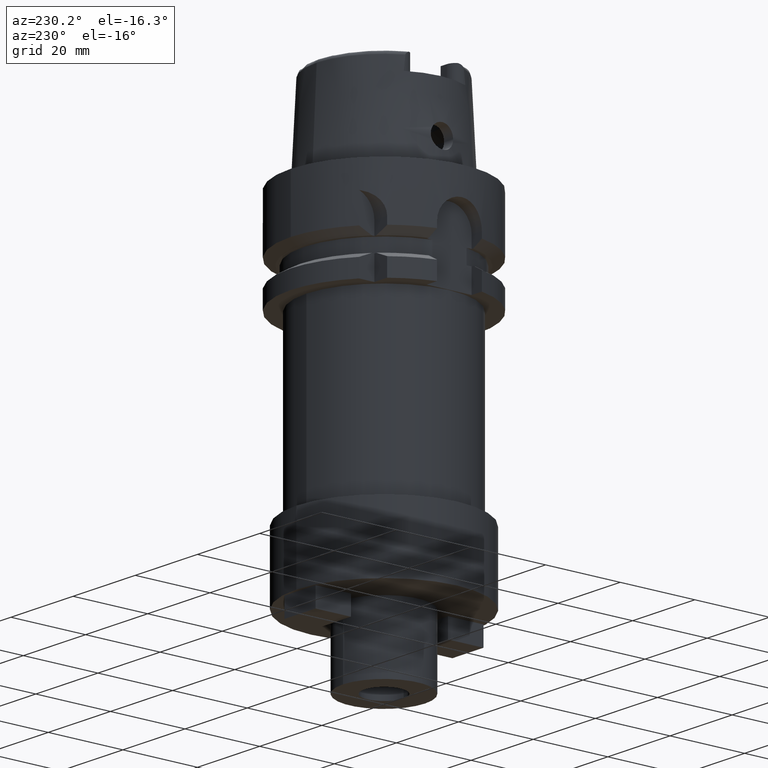
[diagram: clean part render]
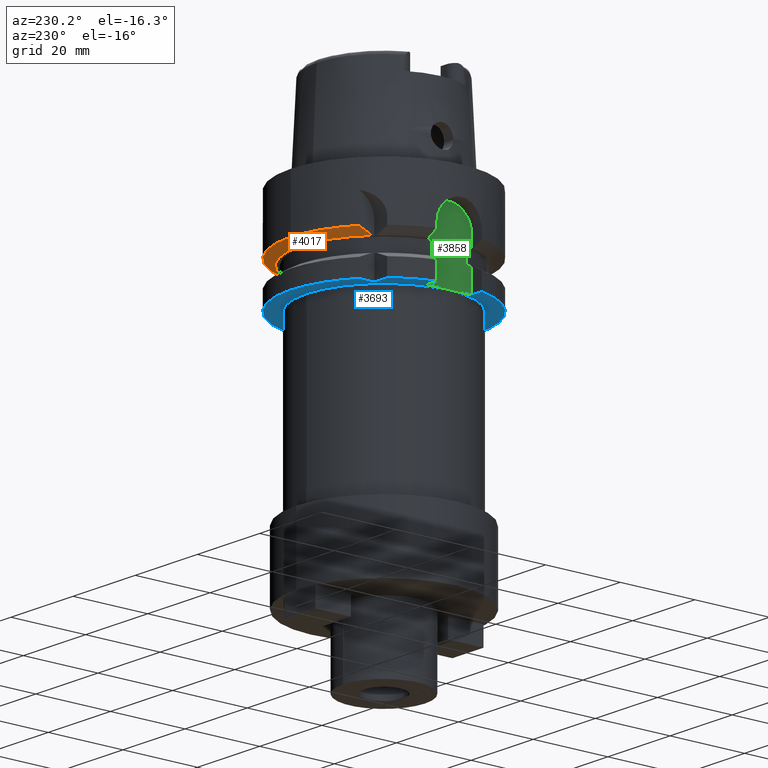
[diagram: same view with three faces highlighted in distinct colors, each labeled with its STEP entity id]
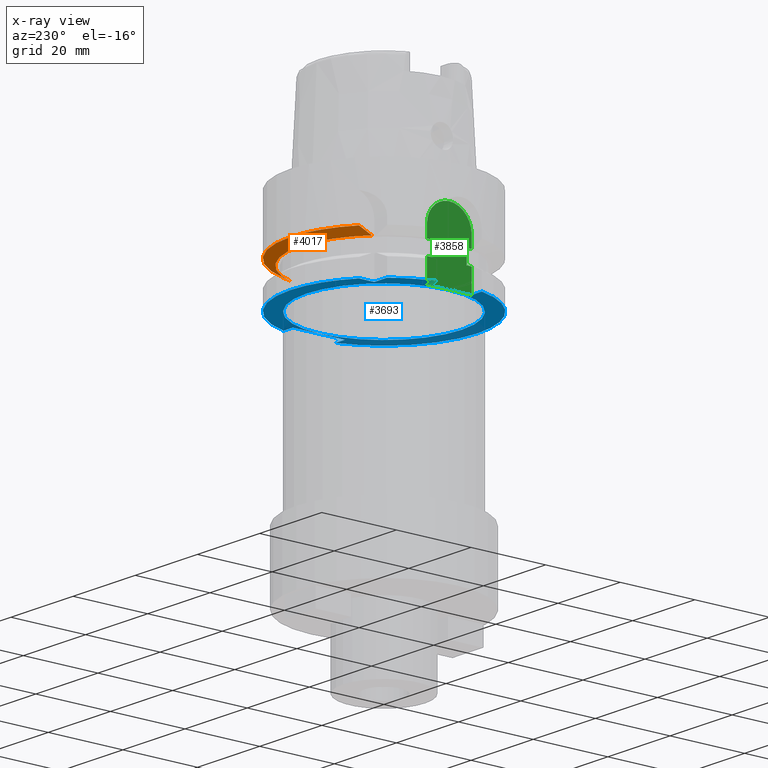
[diagram: x-ray of the same camera — body ghosted, the three highlighted faces saturated]
A machine part, auxiliary view with three faces highlighted in distinct colors.
The next image is the same camera in x-ray (body ghosted, the three faces saturated) — at least one of them is partly hidden behind the body in this view.
Their STEP definitions:

[orange] entity #4017 — the highlighted conical surface has half-angle 60 deg.
#1667=CARTESIAN_POINT('',(0.E0,0.E0,-1.6125E1));
#1668=DIRECTION('',(0.E0,0.E0,1.E0));
#1669=DIRECTION('',(9.499067212052E-1,3.125335518136E-1,0.E0));
#1670=AXIS2_PLACEMENT_3D('',#1667,#1668,#1669);
#1675=CARTESIAN_POINT('',(0.E0,0.E0,-1.6125E1));
#1676=DIRECTION('',(0.E0,0.E0,1.E0));
#1677=DIRECTION('',(0.E0,1.E0,0.E0));
#1678=AXIS2_PLACEMENT_3D('',#1675,#1676,#1677);
#1683=CARTESIAN_POINT('',(-1.549998696696E1,1.616805725645E1,-1.6125E1));
#1684=CARTESIAN_POINT('',(-1.549998696696E1,1.655361155509E1,
-1.596431356450E1));
#1685=CARTESIAN_POINT('',(-1.550000794499E1,1.732281351975E1,
-1.563762646188E1));
#1686=CARTESIAN_POINT('',(-1.549999174208E1,1.847204114163E1,
-1.513705480377E1));
#1687=CARTESIAN_POINT('',(-1.550001397181E1,1.923439116187E1,
-1.479487699931E1));
#1688=CARTESIAN_POINT('',(-1.550001397181E1,1.961503420525E1,
-1.462244977309E1));
#1701=CARTESIAN_POINT('',(2.127562136146E1,7.000000355892E0,-1.6125E1));
#1702=CARTESIAN_POINT('',(2.156931147606E1,7.000000355892E0,-1.596393185582E1));
#1703=CARTESIAN_POINT('',(2.216268158990E1,6.999999978779E0,-1.563786199306E1));
#1704=CARTESIAN_POINT('',(2.307079246205E1,6.999999540436E0,-1.513699763345E1));
#1705=CARTESIAN_POINT('',(2.368824366852E1,7.000001086463E0,-1.479528470329E1));
#1706=CARTESIAN_POINT('',(2.399999968312E1,7.000001086463E0,-1.462249198794E1));
#1711=CARTESIAN_POINT('',(0.E0,0.E0,-1.462250092524E1));
#1712=DIRECTION('',(0.E0,0.E0,1.E0));
#1713=DIRECTION('',(9.6E-1,2.8E-1,0.E0));
#1714=AXIS2_PLACEMENT_3D('',#1711,#1712,#1713);
#1719=CARTESIAN_POINT('',(0.E0,0.E0,-1.462250092524E1));
#1720=DIRECTION('',(0.E0,0.E0,1.E0));
#1721=DIRECTION('',(0.E0,1.E0,0.E0));
#1722=AXIS2_PLACEMENT_3D('',#1719,#1720,#1721);
#2640=CARTESIAN_POINT('',(-1.549998696696E1,1.616805725645E1,-1.6125E1));
#2642=VERTEX_POINT('',#2640);
#2644=VERTEX_POINT('',#1688);
#2748=CARTESIAN_POINT('',(2.127562136146E1,7.000000355892E0,-1.6125E1));
#2749=VERTEX_POINT('',#2748);
#2750=CARTESIAN_POINT('',(0.E0,2.239759526419E1,-1.6125E1));
#2751=VERTEX_POINT('',#2750);
#2754=VERTEX_POINT('',#1706);
#2755=CARTESIAN_POINT('',(0.E0,2.5E1,-1.462250092524E1));
#2756=VERTEX_POINT('',#2755);
#4001=CARTESIAN_POINT('',(0.E0,0.E0,-1.537375046262E1));
#4002=DIRECTION('',(0.E0,0.E0,1.E0));
#4003=DIRECTION('',(0.E0,1.E0,0.E0));
#4004=AXIS2_PLACEMENT_3D('',#4001,#4002,#4003);
#4005=CONICAL_SURFACE('',#4004,2.369879763210E1,6.E1);
#4006=ORIENTED_EDGE('',*,*,#3990,.F.);
#4007=ORIENTED_EDGE('',*,*,#3979,.F.);
#4008=ORIENTED_EDGE('',*,*,#3977,.F.);
#4010=ORIENTED_EDGE('',*,*,#4009,.T.);
#4012=ORIENTED_EDGE('',*,*,#4011,.T.);
#4014=ORIENTED_EDGE('',*,*,#4013,.T.);
#4015=EDGE_LOOP('',(#4006,#4007,#4008,#4010,#4012,#4014));
#4016=FACE_OUTER_BOUND('',#4015,.F.);
#1671=CIRCLE('',#1670,2.239759526419E1);
#1679=CIRCLE('',#1678,2.239759526419E1);
#1689=B_SPLINE_CURVE_WITH_KNOTS('',3,(#1683,#1684,#1685,#1686,#1687,#1688),
.UNSPECIFIED.,.F.,.F.,(4,1,1,4),(0.E0,3.333333333333E-1,6.666666666667E-1,1.E0),
.UNSPECIFIED.);
#1707=B_SPLINE_CURVE_WITH_KNOTS('',3,(#1701,#1702,#1703,#1704,#1705,#1706),
.UNSPECIFIED.,.F.,.F.,(4,1,1,4),(0.E0,3.333333333333E-1,6.666666666667E-1,1.E0),
.UNSPECIFIED.);
#1715=CIRCLE('',#1714,2.5E1);
#1723=CIRCLE('',#1722,2.5E1);
#3977=EDGE_CURVE('',#2749,#2751,#1671,.T.);
#3979=EDGE_CURVE('',#2751,#2642,#1679,.T.);
#3990=EDGE_CURVE('',#2642,#2644,#1689,.T.);
#4009=EDGE_CURVE('',#2749,#2754,#1707,.T.);
#4011=EDGE_CURVE('',#2754,#2756,#1715,.T.);
#4013=EDGE_CURVE('',#2756,#2644,#1723,.T.);
#4017=ADVANCED_FACE('',(#4016),#4005,.T.);

[blue] entity #3693 — the highlighted planar face has unit normal (0, 0, 1).
#1183=DIRECTION('',(1.195736170824E-13,-1.E0,0.E0));
#1184=VECTOR('',#1183,4.115045245932E0);
#1185=CARTESIAN_POINT('',(-1.55E1,1.961504524593E1,-2.6E1));
#1186=LINE('',#1185,#1184);
#1190=DIRECTION('',(-1.E0,1.195736170824E-13,0.E0));
#1191=VECTOR('',#1190,4.115045245932E0);
#1192=CARTESIAN_POINT('',(-1.55E1,1.55E1,-2.6E1));
#1193=LINE('',#1192,#1191);
#1197=CARTESIAN_POINT('',(0.E0,0.E0,-2.6E1));
#1198=DIRECTION('',(0.E0,0.E0,1.E0));
#1199=DIRECTION('',(-7.846018098373E-1,6.2E-1,0.E0));
#1200=AXIS2_PLACEMENT_3D('',#1197,#1198,#1199);
#1205=DIRECTION('',(-1.E0,-7.552440097537E-14,0.E0));
#1206=VECTOR('',#1205,3.269322199022E0);
#1207=CARTESIAN_POINT('',(-2.1E1,-6.E0,-2.6E1));
#1208=LINE('',#1207,#1206);
#1212=CARTESIAN_POINT('',(0.E0,0.E0,-2.6E1));
#1213=DIRECTION('',(0.E0,0.E0,1.E0));
#1214=DIRECTION('',(-9.707728879609E-1,-2.4E-1,0.E0));
#1215=AXIS2_PLACEMENT_3D('',#1212,#1213,#1214);
#1220=CARTESIAN_POINT('',(0.E0,0.E0,-2.6E1));
#1221=DIRECTION('',(0.E0,0.E0,1.E0));
#1222=DIRECTION('',(0.E0,-1.E0,0.E0));
#1223=AXIS2_PLACEMENT_3D('',#1220,#1221,#1222);
#1228=DIRECTION('',(-1.E0,0.E0,0.E0));
#1229=VECTOR('',#1228,3.E0);
#1230=CARTESIAN_POINT('',(2.4E1,-7.E0,-2.6E1));
#1231=LINE('',#1230,#1229);
#1235=CARTESIAN_POINT('',(0.E0,0.E0,-2.6E1));
#1236=DIRECTION('',(0.E0,0.E0,1.E0));
#1237=DIRECTION('',(9.6E-1,2.8E-1,0.E0));
#1238=AXIS2_PLACEMENT_3D('',#1235,#1236,#1237);
#1243=CARTESIAN_POINT('',(0.E0,0.E0,-2.6E1));
#1244=DIRECTION('',(0.E0,0.E0,1.E0));
#1245=DIRECTION('',(0.E0,1.E0,0.E0));
#1246=AXIS2_PLACEMENT_3D('',#1243,#1244,#1245);
#1251=CARTESIAN_POINT('',(0.E0,0.E0,-2.6E1));
#1252=DIRECTION('',(0.E0,0.E0,-1.E0));
#1253=DIRECTION('',(0.E0,-1.E0,0.E0));
#1254=AXIS2_PLACEMENT_3D('',#1251,#1252,#1253);
#1259=CARTESIAN_POINT('',(0.E0,0.E0,-2.6E1));
#1260=DIRECTION('',(0.E0,0.E0,-1.E0));
#1261=DIRECTION('',(0.E0,1.E0,0.E0));
#1262=AXIS2_PLACEMENT_3D('',#1259,#1260,#1261);
#1288=DIRECTION('',(-1.E0,0.E0,0.E0));
#1289=VECTOR('',#1288,3.E0);
#1290=CARTESIAN_POINT('',(2.4E1,7.E0,-2.6E1));
#1291=LINE('',#1290,#1289);
#1312=DIRECTION('',(0.E0,-1.E0,0.E0));
#1313=VECTOR('',#1312,1.4E1);
#1314=CARTESIAN_POINT('',(2.1E1,7.E0,-2.6E1));
#1315=LINE('',#1314,#1313);
#1432=DIRECTION('',(0.E0,1.E0,0.E0));
#1433=VECTOR('',#1432,1.2E1);
#1434=CARTESIAN_POINT('',(-2.1E1,-6.E0,-2.6E1));
#1435=LINE('',#1434,#1433);
#1469=DIRECTION('',(-1.E0,7.606774198959E-14,0.E0));
#1470=VECTOR('',#1469,3.269322199022E0);
#1471=CARTESIAN_POINT('',(-2.1E1,6.E0,-2.6E1));
#1472=LINE('',#1471,#1470);
#2605=CARTESIAN_POINT('',(0.E0,2.08E1,-2.6E1));
#2606=VERTEX_POINT('',#2605);
#2607=CARTESIAN_POINT('',(0.E0,-2.08E1,-2.6E1));
#2608=VERTEX_POINT('',#2607);
#2609=CARTESIAN_POINT('',(-1.55E1,1.961504524593E1,-2.6E1));
#2610=CARTESIAN_POINT('',(-1.55E1,1.55E1,-2.6E1));
#2611=VERTEX_POINT('',#2609);
#2612=VERTEX_POINT('',#2610);
#2613=CARTESIAN_POINT('',(-1.961504524593E1,1.55E1,-2.6E1));
#2614=VERTEX_POINT('',#2613);
#2615=CARTESIAN_POINT('',(-2.426932219902E1,6.E0,-2.6E1));
#2616=VERTEX_POINT('',#2615);
#2617=CARTESIAN_POINT('',(-2.1E1,6.E0,-2.6E1));
#2618=VERTEX_POINT('',#2617);
#2619=CARTESIAN_POINT('',(-2.1E1,-6.E0,-2.6E1));
#2620=VERTEX_POINT('',#2619);
#2621=CARTESIAN_POINT('',(-2.426932219902E1,-6.E0,-2.6E1));
#2622=VERTEX_POINT('',#2621);
#2623=CARTESIAN_POINT('',(0.E0,-2.5E1,-2.6E1));
#2624=CARTESIAN_POINT('',(2.4E1,-7.E0,-2.6E1));
#2625=VERTEX_POINT('',#2623);
#2626=VERTEX_POINT('',#2624);
#2627=CARTESIAN_POINT('',(2.1E1,-7.E0,-2.6E1));
#2628=VERTEX_POINT('',#2627);
#2629=CARTESIAN_POINT('',(2.1E1,7.E0,-2.6E1));
#2630=VERTEX_POINT('',#2629);
#2631=CARTESIAN_POINT('',(2.4E1,7.E0,-2.6E1));
#2632=VERTEX_POINT('',#2631);
#2633=CARTESIAN_POINT('',(0.E0,2.5E1,-2.6E1));
#2634=VERTEX_POINT('',#2633);
#3656=CARTESIAN_POINT('',(0.E0,0.E0,-2.6E1));
#3657=DIRECTION('',(0.E0,0.E0,1.E0));
#3658=DIRECTION('',(0.E0,1.E0,0.E0));
#3659=AXIS2_PLACEMENT_3D('',#3656,#3657,#3658);
#3660=PLANE('',#3659);
#3662=ORIENTED_EDGE('',*,*,#3661,.T.);
#3664=ORIENTED_EDGE('',*,*,#3663,.T.);
#3666=ORIENTED_EDGE('',*,*,#3665,.T.);
#3668=ORIENTED_EDGE('',*,*,#3667,.F.);
#3670=ORIENTED_EDGE('',*,*,#3669,.F.);
#3672=ORIENTED_EDGE('',*,*,#3671,.T.);
#3674=ORIENTED_EDGE('',*,*,#3673,.T.);
#3676=ORIENTED_EDGE('',*,*,#3675,.T.);
#3678=ORIENTED_EDGE('',*,*,#3677,.T.);
#3680=ORIENTED_EDGE('',*,*,#3679,.F.);
#3682=ORIENTED_EDGE('',*,*,#3681,.F.);
#3684=ORIENTED_EDGE('',*,*,#3683,.T.);
#3686=ORIENTED_EDGE('',*,*,#3685,.T.);
#3687=EDGE_LOOP('',(#3662,#3664,#3666,#3668,#3670,#3672,#3674,#3676,#3678,#3680,
#3682,#3684,#3686));
#3688=FACE_OUTER_BOUND('',#3687,.F.);
#3689=ORIENTED_EDGE('',*,*,#3649,.T.);
#3690=ORIENTED_EDGE('',*,*,#3638,.T.);
#3691=EDGE_LOOP('',(#3689,#3690));
#3692=FACE_BOUND('',#3691,.F.);
#1201=CIRCLE('',#1200,2.5E1);
#1216=CIRCLE('',#1215,2.5E1);
#1224=CIRCLE('',#1223,2.5E1);
#1239=CIRCLE('',#1238,2.5E1);
#1247=CIRCLE('',#1246,2.5E1);
#1255=CIRCLE('',#1254,2.08E1);
#1263=CIRCLE('',#1262,2.08E1);
#3638=EDGE_CURVE('',#2606,#2608,#1263,.T.);
#3649=EDGE_CURVE('',#2608,#2606,#1255,.T.);
#3661=EDGE_CURVE('',#2611,#2612,#1186,.T.);
#3663=EDGE_CURVE('',#2612,#2614,#1193,.T.);
#3665=EDGE_CURVE('',#2614,#2616,#1201,.T.);
#3667=EDGE_CURVE('',#2618,#2616,#1472,.T.);
#3669=EDGE_CURVE('',#2620,#2618,#1435,.T.);
#3671=EDGE_CURVE('',#2620,#2622,#1208,.T.);
#3673=EDGE_CURVE('',#2622,#2625,#1216,.T.);
#3675=EDGE_CURVE('',#2625,#2626,#1224,.T.);
#3677=EDGE_CURVE('',#2626,#2628,#1231,.T.);
#3679=EDGE_CURVE('',#2630,#2628,#1315,.T.);
#3681=EDGE_CURVE('',#2632,#2630,#1291,.T.);
#3683=EDGE_CURVE('',#2632,#2634,#1239,.T.);
#3685=EDGE_CURVE('',#2634,#2611,#1247,.T.);
#3693=ADVANCED_FACE('',(#3688,#3692),#3660,.F.);

[green] entity #3858 — the highlighted planar face has unit normal (1, 0, 0).
#1408=DIRECTION('',(0.E0,0.E0,1.E0));
#1409=VECTOR('',#1408,6.125E0);
#1410=CARTESIAN_POINT('',(-2.1E1,-6.E0,-2.6E1));
#1411=LINE('',#1410,#1409);
#1432=DIRECTION('',(0.E0,1.E0,0.E0));
#1433=VECTOR('',#1432,1.2E1);
#1434=CARTESIAN_POINT('',(-2.1E1,-6.E0,-2.6E1));
#1435=LINE('',#1434,#1433);
#1439=DIRECTION('',(2.044392294273E-14,1.E0,0.E0));
#1440=VECTOR('',#1439,1.390227771354E0);
#1441=CARTESIAN_POINT('',(-2.1E1,4.609772228646E0,-1.6125E1));
#1442=LINE('',#1441,#1440);
#1446=CARTESIAN_POINT('',(-2.1E1,0.E0,-1.3E1));
#1447=DIRECTION('',(1.E0,0.E0,0.E0));
#1448=DIRECTION('',(0.E0,1.E0,0.E0));
#1449=AXIS2_PLACEMENT_3D('',#1446,#1447,#1448);
#1454=CARTESIAN_POINT('',(-2.1E1,0.E0,-1.3E1));
#1455=DIRECTION('',(1.E0,0.E0,0.E0));
#1456=DIRECTION('',(0.E0,0.E0,1.E0));
#1457=AXIS2_PLACEMENT_3D('',#1454,#1455,#1456);
#1462=DIRECTION('',(-2.044392294273E-14,1.E0,0.E0));
#1463=VECTOR('',#1462,1.390227771354E0);
#1464=CARTESIAN_POINT('',(-2.1E1,-6.E0,-1.6125E1));
#1465=LINE('',#1464,#1463);
#1486=DIRECTION('',(0.E0,0.E0,-1.E0));
#1487=VECTOR('',#1486,6.125E0);
#1488=CARTESIAN_POINT('',(-2.1E1,6.E0,-1.9875E1));
#1489=LINE('',#1488,#1487);
#1560=DIRECTION('',(2.044392294273E-14,1.E0,0.E0));
#1561=VECTOR('',#1560,1.390227771354E0);
#1562=CARTESIAN_POINT('',(-2.1E1,4.609772228646E0,-1.9875E1));
#1563=LINE('',#1562,#1561);
#1608=DIRECTION('',(0.E0,0.E0,-1.E0));
#1609=VECTOR('',#1608,3.75E0);
#1610=CARTESIAN_POINT('',(-2.1E1,4.609772228646E0,-1.6125E1));
#1611=LINE('',#1610,#1609);
#1858=DIRECTION('',(0.E0,0.E0,1.E0));
#1859=VECTOR('',#1858,3.125E0);
#1860=CARTESIAN_POINT('',(-2.1E1,-6.E0,-1.6125E1));
#1861=LINE('',#1860,#1859);
#2029=DIRECTION('',(0.E0,0.E0,-1.E0));
#2030=VECTOR('',#2029,3.125E0);
#2031=CARTESIAN_POINT('',(-2.1E1,6.E0,-1.3E1));
#2032=LINE('',#2031,#2030);
#2078=DIRECTION('',(0.E0,0.E0,1.E0));
#2079=VECTOR('',#2078,3.75E0);
#2080=CARTESIAN_POINT('',(-2.1E1,-4.609772228646E0,-1.9875E1));
#2081=LINE('',#2080,#2079);
#2092=DIRECTION('',(-2.044392294273E-14,1.E0,0.E0));
#2093=VECTOR('',#2092,1.390227771354E0);
#2094=CARTESIAN_POINT('',(-2.1E1,-6.E0,-1.9875E1));
#2095=LINE('',#2094,#2093);
#2617=CARTESIAN_POINT('',(-2.1E1,6.E0,-2.6E1));
#2618=VERTEX_POINT('',#2617);
#2619=CARTESIAN_POINT('',(-2.1E1,-6.E0,-2.6E1));
#2620=VERTEX_POINT('',#2619);
#2663=CARTESIAN_POINT('',(-2.1E1,-6.E0,-1.9875E1));
#2664=VERTEX_POINT('',#2663);
#2667=CARTESIAN_POINT('',(-2.1E1,-6.E0,-1.6125E1));
#2669=VERTEX_POINT('',#2667);
#2671=CARTESIAN_POINT('',(-2.1E1,-6.E0,-1.3E1));
#2672=VERTEX_POINT('',#2671);
#2677=CARTESIAN_POINT('',(-2.1E1,6.E0,-1.9875E1));
#2678=VERTEX_POINT('',#2677);
#2679=CARTESIAN_POINT('',(-2.1E1,4.609772228646E0,-1.9875E1));
#2680=VERTEX_POINT('',#2679);
#2681=CARTESIAN_POINT('',(-2.1E1,4.609772228646E0,-1.6125E1));
#2682=VERTEX_POINT('',#2681);
#2683=CARTESIAN_POINT('',(-2.1E1,6.E0,-1.6125E1));
#2684=VERTEX_POINT('',#2683);
#2685=CARTESIAN_POINT('',(-2.1E1,6.E0,-1.3E1));
#2686=VERTEX_POINT('',#2685);
#2687=CARTESIAN_POINT('',(-2.1E1,0.E0,-7.E0));
#2688=VERTEX_POINT('',#2687);
#2689=CARTESIAN_POINT('',(-2.1E1,-4.609772228646E0,-1.6125E1));
#2690=VERTEX_POINT('',#2689);
#2691=CARTESIAN_POINT('',(-2.1E1,-4.609772228646E0,-1.9875E1));
#2692=VERTEX_POINT('',#2691);
#3827=CARTESIAN_POINT('',(-2.1E1,0.E0,0.E0));
#3828=DIRECTION('',(1.E0,0.E0,0.E0));
#3829=DIRECTION('',(0.E0,0.E0,1.E0));
#3830=AXIS2_PLACEMENT_3D('',#3827,#3828,#3829);
#3831=PLANE('',#3830);
#3832=ORIENTED_EDGE('',*,*,#3669,.T.);
#3834=ORIENTED_EDGE('',*,*,#3833,.F.);
#3836=ORIENTED_EDGE('',*,*,#3835,.F.);
#3838=ORIENTED_EDGE('',*,*,#3837,.F.);
#3840=ORIENTED_EDGE('',*,*,#3839,.T.);
#3842=ORIENTED_EDGE('',*,*,#3841,.F.);
#3844=ORIENTED_EDGE('',*,*,#3843,.T.);
#3846=ORIENTED_EDGE('',*,*,#3845,.T.);
#3848=ORIENTED_EDGE('',*,*,#3847,.F.);
#3850=ORIENTED_EDGE('',*,*,#3849,.T.);
#3852=ORIENTED_EDGE('',*,*,#3851,.F.);
#3854=ORIENTED_EDGE('',*,*,#3853,.F.);
#3855=ORIENTED_EDGE('',*,*,#3817,.F.);
#3856=EDGE_LOOP('',(#3832,#3834,#3836,#3838,#3840,#3842,#3844,#3846,#3848,#3850,
#3852,#3854,#3855));
#3857=FACE_OUTER_BOUND('',#3856,.F.);
#1450=CIRCLE('',#1449,6.E0);
#1458=CIRCLE('',#1457,6.E0);
#3669=EDGE_CURVE('',#2620,#2618,#1435,.T.);
#3817=EDGE_CURVE('',#2620,#2664,#1411,.T.);
#3833=EDGE_CURVE('',#2678,#2618,#1489,.T.);
#3835=EDGE_CURVE('',#2680,#2678,#1563,.T.);
#3837=EDGE_CURVE('',#2682,#2680,#1611,.T.);
#3839=EDGE_CURVE('',#2682,#2684,#1442,.T.);
#3841=EDGE_CURVE('',#2686,#2684,#2032,.T.);
#3843=EDGE_CURVE('',#2686,#2688,#1450,.T.);
#3845=EDGE_CURVE('',#2688,#2672,#1458,.T.);
#3847=EDGE_CURVE('',#2669,#2672,#1861,.T.);
#3849=EDGE_CURVE('',#2669,#2690,#1465,.T.);
#3851=EDGE_CURVE('',#2692,#2690,#2081,.T.);
#3853=EDGE_CURVE('',#2664,#2692,#2095,.T.);
#3858=ADVANCED_FACE('',(#3857),#3831,.F.);